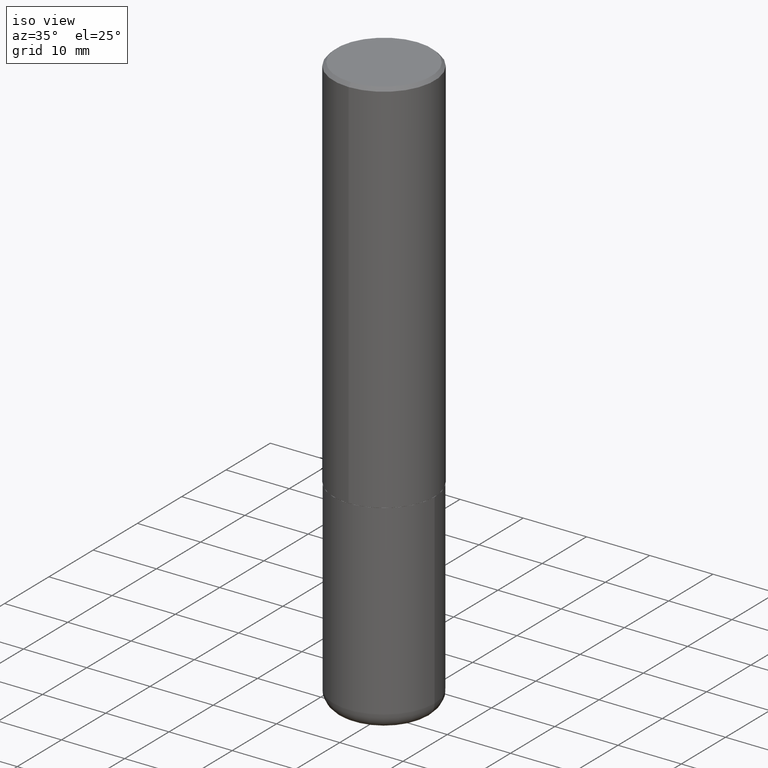
[diagram: clean part render]
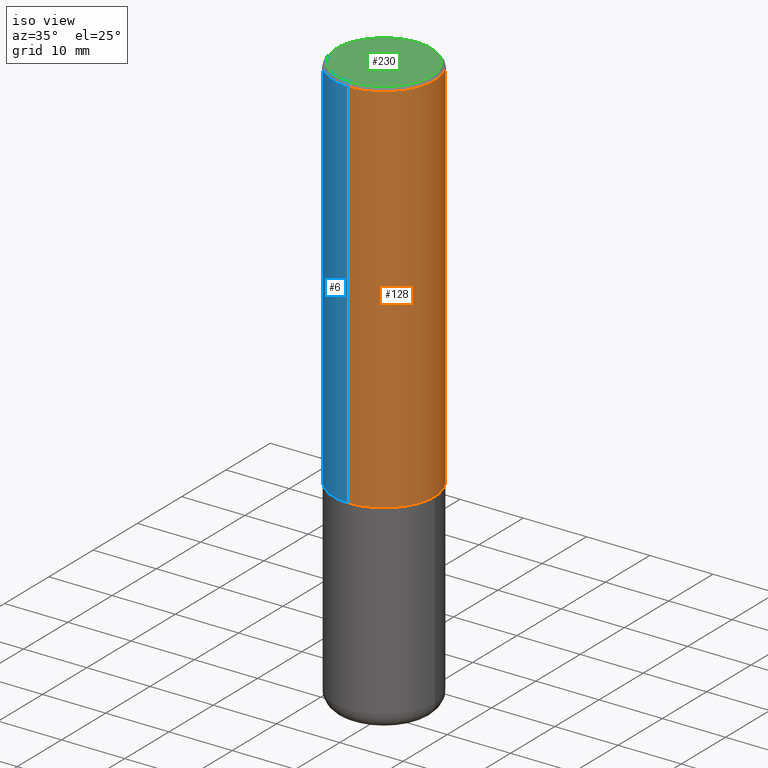
[diagram: same view with three faces highlighted in distinct colors, each labeled with its STEP entity id]
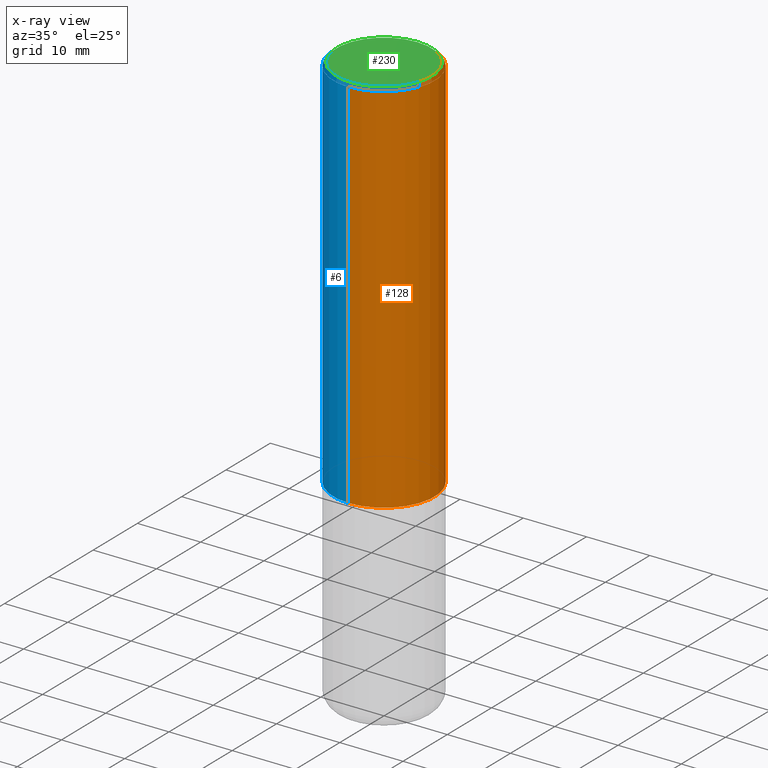
[diagram: x-ray of the same camera — body ghosted, the three highlighted faces saturated]
A machine part, iso view with three faces highlighted in distinct colors.
The next image is the same camera in x-ray (body ghosted, the three faces saturated) — at least one of them is partly hidden behind the body in this view.
Their STEP definitions:

[orange] entity #128 — the highlighted cylindrical surface (partial cylindrical patch) has radius 7.9997 mm, axis along (-0, 0, 1).
#20 = EDGE_CURVE ( 'NONE', #384, #379, #92, .T. ) ;
#23 = ORIENTED_EDGE ( 'NONE', *, *, #399, .T. ) ;
#33 = CARTESIAN_POINT ( 'NONE',  ( 5.770399254251818281E-29, -8.249587257318639409E-15, -2.361199999999999743 ) ) ;
#36 = DIRECTION ( 'NONE',  ( -6.982962677686265922E-15, -1.000000000000000000, 3.496670018878889100E-15 ) ) ;
#52 = CARTESIAN_POINT ( 'NONE',  ( 2.199284095337289871E-15, 0.3149499999999999522, -0.02000000000000116962 ) ) ;
#68 = EDGE_CURVE ( 'NONE', #183, #416, #354, .T. ) ;
#80 = DIRECTION ( 'NONE',  ( -2.443841798344832310E-29, 3.493811306673996002E-15, 1.000000000000000000 ) ) ;
#84 = CARTESIAN_POINT ( 'NONE',  ( -2.160713844398143363E-15, -0.3149500000000000632, -0.01999999999999896652 ) ) ;
#90 = ORIENTED_EDGE ( 'NONE', *, *, #68, .T. ) ;
#92 = CIRCLE ( 'NONE', #353, 0.3149500000000000077 ) ;
#100 = CARTESIAN_POINT ( 'NONE',  ( 0.000000000000000000, 0.000000000000000000, 0.000000000000000000 ) ) ;
#118 = LINE ( 'NONE', #284, #172 ) ;
#128 = ADVANCED_FACE ( 'NONE', ( #158 ), #391, .T. ) ;
#129 = CARTESIAN_POINT ( 'NONE',  ( 4.887683596689681296E-31, -6.987622613348016853E-17, -0.02000000000000006981 ) ) ;
#144 = DIRECTION ( 'NONE',  ( -6.982962677686264344E-15, -1.000000000000000000, 3.493811306673996002E-15 ) ) ;
#158 = FACE_OUTER_BOUND ( 'NONE', #294, .T. ) ;
#159 = ORIENTED_EDGE ( 'NONE', *, *, #20, .F. ) ;
#166 = AXIS2_PLACEMENT_3D ( 'NONE', #33, #262, #395 ) ;
#172 = VECTOR ( 'NONE', #411, 39.37007874015748143 ) ;
#183 = VERTEX_POINT ( 'NONE', #369 ) ;
#186 = AXIS2_PLACEMENT_3D ( 'NONE', #100, #408, #144 ) ;
#201 = VECTOR ( 'NONE', #80, 39.37007874015748143 ) ;
#234 = LINE ( 'NONE', #331, #201 ) ;
#262 = DIRECTION ( 'NONE',  ( -2.443841798344832310E-29, 3.493811306673996397E-15, 1.000000000000000000 ) ) ;
#284 = CARTESIAN_POINT ( 'NONE',  ( 2.237854346276435985E-15, 0.3149500000000001743, -1.100375871036975704E-15 ) ) ;
#294 = EDGE_LOOP ( 'NONE', ( #90, #23, #159, #350 ) ) ;
#331 = CARTESIAN_POINT ( 'NONE',  ( -2.199284095337290265E-15, -0.3149500000000001743, 1.100375871036975704E-15 ) ) ;
#345 = EDGE_CURVE ( 'NONE', #183, #384, #234, .T. ) ;
#347 = CARTESIAN_POINT ( 'NONE',  ( 2.237854346276465567E-15, 0.3149499999999920141, -2.361200000000000632 ) ) ;
#350 = ORIENTED_EDGE ( 'NONE', *, *, #345, .F. ) ;
#353 = AXIS2_PLACEMENT_3D ( 'NONE', #129, #385, #36 ) ;
#354 = CIRCLE ( 'NONE', #166, 0.3149500000000002853 ) ;
#369 = CARTESIAN_POINT ( 'NONE',  ( -2.199284095337233467E-15, -0.3149500000000085564, -2.361199999999998411 ) ) ;
#379 = VERTEX_POINT ( 'NONE', #52 ) ;
#384 = VERTEX_POINT ( 'NONE', #84 ) ;
#385 = DIRECTION ( 'NONE',  ( -2.443841798344832310E-29, 3.493811306673996397E-15, 1.000000000000000000 ) ) ;
#391 = CYLINDRICAL_SURFACE ( 'NONE', #186, 0.3149500000000001743 ) ;
#395 = DIRECTION ( 'NONE',  ( -6.982962677686265922E-15, -1.000000000000000000, 3.469564049740290009E-15 ) ) ;
#399 = EDGE_CURVE ( 'NONE', #416, #379, #118, .T. ) ;
#408 = DIRECTION ( 'NONE',  ( -2.443841798344832310E-29, 3.493811306673996397E-15, 1.000000000000000000 ) ) ;
#411 = DIRECTION ( 'NONE',  ( -2.443841798344832310E-29, 3.493811306673996002E-15, 1.000000000000000000 ) ) ;
#416 = VERTEX_POINT ( 'NONE', #347 ) ;

[blue] entity #6 — the highlighted cylindrical surface (partial cylindrical patch) has radius 7.9997 mm, axis along (-0, 0, 1).
#6 = ADVANCED_FACE ( 'NONE', ( #270 ), #162, .T. ) ;
#52 = CARTESIAN_POINT ( 'NONE',  ( 2.199284095337289871E-15, 0.3149499999999999522, -0.02000000000000116962 ) ) ;
#80 = DIRECTION ( 'NONE',  ( -2.443841798344832310E-29, 3.493811306673996002E-15, 1.000000000000000000 ) ) ;
#84 = CARTESIAN_POINT ( 'NONE',  ( -2.160713844398143363E-15, -0.3149500000000000632, -0.01999999999999896652 ) ) ;
#88 = EDGE_CURVE ( 'NONE', #416, #183, #130, .T. ) ;
#95 = ORIENTED_EDGE ( 'NONE', *, *, #88, .T. ) ;
#97 = DIRECTION ( 'NONE',  ( -6.982962677686265922E-15, -1.000000000000000000, 3.469564049740290009E-15 ) ) ;
#118 = LINE ( 'NONE', #284, #172 ) ;
#130 = CIRCLE ( 'NONE', #137, 0.3149500000000002853 ) ;
#136 = CARTESIAN_POINT ( 'NONE',  ( 5.770399254251818281E-29, -8.249587257318639409E-15, -2.361199999999999743 ) ) ;
#137 = AXIS2_PLACEMENT_3D ( 'NONE', #136, #157, #97 ) ;
#150 = AXIS2_PLACEMENT_3D ( 'NONE', #287, #313, #412 ) ;
#157 = DIRECTION ( 'NONE',  ( -2.443841798344832310E-29, 3.493811306673996397E-15, 1.000000000000000000 ) ) ;
#161 = ORIENTED_EDGE ( 'NONE', *, *, #345, .T. ) ;
#162 = CYLINDRICAL_SURFACE ( 'NONE', #279, 0.3149500000000001743 ) ;
#172 = VECTOR ( 'NONE', #411, 39.37007874015748143 ) ;
#183 = VERTEX_POINT ( 'NONE', #369 ) ;
#184 = ORIENTED_EDGE ( 'NONE', *, *, #399, .F. ) ;
#201 = VECTOR ( 'NONE', #80, 39.37007874015748143 ) ;
#234 = LINE ( 'NONE', #331, #201 ) ;
#255 = ORIENTED_EDGE ( 'NONE', *, *, #301, .F. ) ;
#265 = EDGE_LOOP ( 'NONE', ( #184, #95, #161, #255 ) ) ;
#268 = DIRECTION ( 'NONE',  ( -2.443841798344832310E-29, 3.493811306673996397E-15, 1.000000000000000000 ) ) ;
#270 = FACE_OUTER_BOUND ( 'NONE', #265, .T. ) ;
#279 = AXIS2_PLACEMENT_3D ( 'NONE', #324, #268, #362 ) ;
#284 = CARTESIAN_POINT ( 'NONE',  ( 2.237854346276435985E-15, 0.3149500000000001743, -1.100375871036975704E-15 ) ) ;
#287 = CARTESIAN_POINT ( 'NONE',  ( 4.887683596689681296E-31, -6.987622613348016853E-17, -0.02000000000000006981 ) ) ;
#301 = EDGE_CURVE ( 'NONE', #379, #384, #397, .T. ) ;
#313 = DIRECTION ( 'NONE',  ( -2.443841798344832310E-29, 3.493811306673996397E-15, 1.000000000000000000 ) ) ;
#324 = CARTESIAN_POINT ( 'NONE',  ( 0.000000000000000000, 0.000000000000000000, 0.000000000000000000 ) ) ;
#331 = CARTESIAN_POINT ( 'NONE',  ( -2.199284095337290265E-15, -0.3149500000000001743, 1.100375871036975704E-15 ) ) ;
#345 = EDGE_CURVE ( 'NONE', #183, #384, #234, .T. ) ;
#347 = CARTESIAN_POINT ( 'NONE',  ( 2.237854346276465567E-15, 0.3149499999999920141, -2.361200000000000632 ) ) ;
#362 = DIRECTION ( 'NONE',  ( -6.982962677686264344E-15, -1.000000000000000000, 3.493811306673996002E-15 ) ) ;
#369 = CARTESIAN_POINT ( 'NONE',  ( -2.199284095337233467E-15, -0.3149500000000085564, -2.361199999999998411 ) ) ;
#379 = VERTEX_POINT ( 'NONE', #52 ) ;
#384 = VERTEX_POINT ( 'NONE', #84 ) ;
#397 = CIRCLE ( 'NONE', #150, 0.3149500000000000077 ) ;
#399 = EDGE_CURVE ( 'NONE', #416, #379, #118, .T. ) ;
#411 = DIRECTION ( 'NONE',  ( -2.443841798344832310E-29, 3.493811306673996002E-15, 1.000000000000000000 ) ) ;
#412 = DIRECTION ( 'NONE',  ( -6.982962677686265922E-15, -1.000000000000000000, 3.496670018878889100E-15 ) ) ;
#416 = VERTEX_POINT ( 'NONE', #347 ) ;

[green] entity #230 — the highlighted planar face has unit normal (0, -0, -1).
#2 = VERTEX_POINT ( 'NONE', #37 ) ;
#7 = CIRCLE ( 'NONE', #375, 0.2949499999999997124 ) ;
#17 = FACE_OUTER_BOUND ( 'NONE', #226, .T. ) ;
#22 = CARTESIAN_POINT ( 'NONE',  ( 2.129454468560426178E-15, 0.2949499999999997124, -7.480905965451576175E-16 ) ) ;
#34 = DIRECTION ( 'NONE',  ( -6.982962677686265922E-15, -1.000000000000000000, 3.493811306673996397E-15 ) ) ;
#37 = CARTESIAN_POINT ( 'NONE',  ( -2.092108864420427242E-15, -0.2949499999999997124, 1.312908693261830693E-15 ) ) ;
#85 = ORIENTED_EDGE ( 'NONE', *, *, #103, .T. ) ;
#99 = AXIS2_PLACEMENT_3D ( 'NONE', #309, #199, #236 ) ;
#103 = EDGE_CURVE ( 'NONE', #231, #2, #7, .T. ) ;
#110 = CIRCLE ( 'NONE', #303, 0.2949499999999997124 ) ;
#169 = DIRECTION ( 'NONE',  ( -2.443841798344832310E-29, 3.493811306673996397E-15, 1.000000000000000000 ) ) ;
#187 = DIRECTION ( 'NONE',  ( -2.443841798344832310E-29, 3.493811306673996397E-15, 1.000000000000000000 ) ) ;
#199 = DIRECTION ( 'NONE',  ( 2.443841798344832590E-29, -3.493811306673996002E-15, -1.000000000000000000 ) ) ;
#209 = CARTESIAN_POINT ( 'NONE',  ( -6.901630366088901216E-45, 9.866839262614001010E-31, 2.824090483583366362E-16 ) ) ;
#226 = EDGE_LOOP ( 'NONE', ( #85, #244 ) ) ;
#230 = ADVANCED_FACE ( 'NONE', ( #17 ), #403, .F. ) ;
#231 = VERTEX_POINT ( 'NONE', #22 ) ;
#236 = DIRECTION ( 'NONE',  ( 6.982962677686265922E-15, 1.000000000000000000, -3.493811306673996002E-15 ) ) ;
#244 = ORIENTED_EDGE ( 'NONE', *, *, #334, .T. ) ;
#263 = DIRECTION ( 'NONE',  ( -6.982962677686265922E-15, -1.000000000000000000, 3.493811306673996397E-15 ) ) ;
#303 = AXIS2_PLACEMENT_3D ( 'NONE', #209, #169, #34 ) ;
#309 = CARTESIAN_POINT ( 'NONE',  ( 2.059624841783562091E-15, 0.2949499999999997124, -8.892951207243259356E-16 ) ) ;
#334 = EDGE_CURVE ( 'NONE', #2, #231, #110, .T. ) ;
#352 = CARTESIAN_POINT ( 'NONE',  ( -6.901630366088901216E-45, 9.866839262614001010E-31, 2.824090483583366362E-16 ) ) ;
#375 = AXIS2_PLACEMENT_3D ( 'NONE', #352, #187, #263 ) ;
#403 = PLANE ( 'NONE',  #99 ) ;